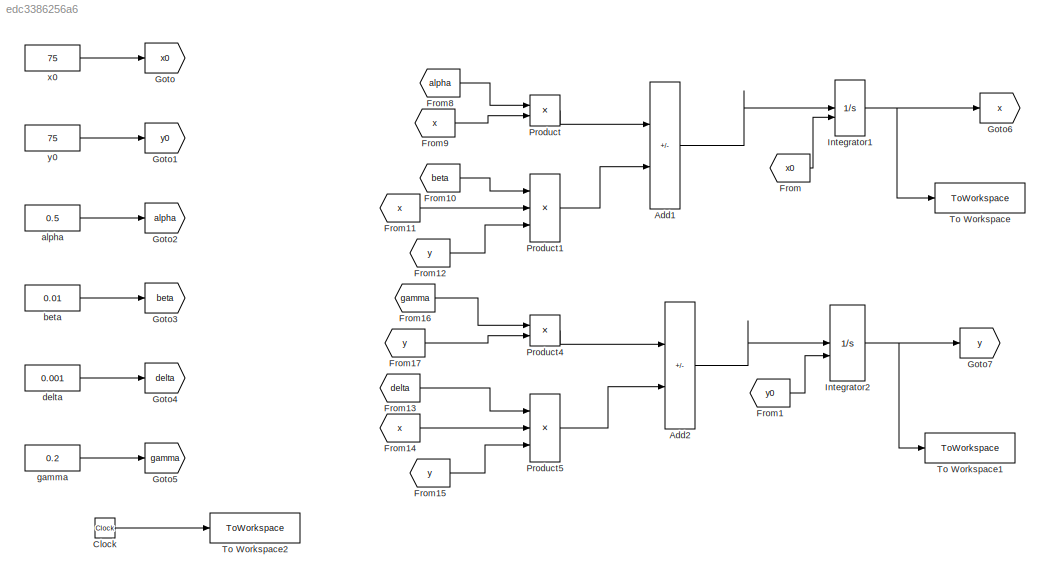
MODEL slx_edc3386256a6
KIND model
CONFIG AbsTol = auto
CONFIG EnableMultiTasking = off
CONFIG FixedStep = auto
CONFIG MaxStep = auto
CONFIG MinStep = auto
CONFIG RelTol = 1e-3
CONFIG SampleTimeConstraint = Unconstrained
CONFIG SolverName = VariableStepAuto
CONFIG StartTime = 0.0
CONFIG StopTime = 10.0
BLOCK [Sum] Add1
  IconShape = rectangular
  Inputs = +-
BLOCK [Sum] Add2
  IconShape = rectangular
  Inputs = -+
BLOCK [Clock] Clock
BLOCK [From] From
  GotoTag = x0
BLOCK [From] From1
  GotoTag = y0
BLOCK [From] From10
  GotoTag = beta
BLOCK [From] From11
  GotoTag = x
BLOCK [From] From12
  GotoTag = y
BLOCK [From] From13
  GotoTag = delta
BLOCK [From] From14
  GotoTag = x
BLOCK [From] From15
  GotoTag = y
BLOCK [From] From16
  GotoTag = gamma
BLOCK [From] From17
  GotoTag = y
BLOCK [From] From8
  GotoTag = alpha
BLOCK [From] From9
  GotoTag = x
BLOCK [Goto] Goto
  GotoTag = x0
BLOCK [Goto] Goto1
  GotoTag = y0
BLOCK [Goto] Goto2
  GotoTag = alpha
BLOCK [Goto] Goto3
  GotoTag = beta
BLOCK [Goto] Goto4
  GotoTag = delta
BLOCK [Goto] Goto5
  GotoTag = gamma
BLOCK [Goto] Goto6
  GotoTag = x
BLOCK [Goto] Goto7
  GotoTag = y
BLOCK [Integrator] Integrator1
  InitialConditionSource = external
BLOCK [Integrator] Integrator2
  InitialConditionSource = external
BLOCK [Product] Product
BLOCK [Product] Product1
  Inputs = 3
BLOCK [Product] Product4
BLOCK [Product] Product5
  Inputs = 3
BLOCK [ToWorkspace] To Workspace
  FixptAsFi = on
  MaxDataPoints = inf
  SampleTime = -1
  VariableName = x
BLOCK [ToWorkspace] To Workspace1
  FixptAsFi = on
  MaxDataPoints = inf
  SampleTime = -1
  VariableName = y
BLOCK [ToWorkspace] To Workspace2
  FixptAsFi = on
  MaxDataPoints = inf
  SampleTime = -1
  VariableName = t
BLOCK [Constant] alpha
  Value = 0.5
BLOCK [Constant] beta
  Value = 0.01
BLOCK [Constant] delta
  Value = 0.001
BLOCK [Constant] gamma
  Value = 0.2
BLOCK [Constant] x0
  Value = 75
BLOCK [Constant] y0
  Value = 75
LINE Add1:1 -> Integrator1:1
LINE Add2:1 -> Integrator2:1
LINE Clock:1 -> To Workspace2:1
LINE From10:1 -> Product1:1
LINE From11:1 -> Product1:2
LINE From12:1 -> Product1:3
LINE From13:1 -> Product5:1
LINE From14:1 -> Product5:2
LINE From15:1 -> Product5:3
LINE From16:1 -> Product4:1
LINE From17:1 -> Product4:2
LINE From1:1 -> Integrator2:2
LINE From8:1 -> Product:1
LINE From9:1 -> Product:2
LINE From:1 -> Integrator1:2
NET Integrator1:1 -> Goto6:1, To Workspace:1
NET Integrator2:1 -> Goto7:1, To Workspace1:1
LINE Product1:1 -> Add1:2
LINE Product4:1 -> Add2:1
LINE Product5:1 -> Add2:2
LINE Product:1 -> Add1:1
LINE alpha:1 -> Goto2:1
LINE beta:1 -> Goto3:1
LINE delta:1 -> Goto4:1
LINE gamma:1 -> Goto5:1
LINE x0:1 -> Goto:1
LINE y0:1 -> Goto1:1
note: NET lines group one-source signal fan-out (src -> all destinations, sorted); 1:1 wires keep LINE
